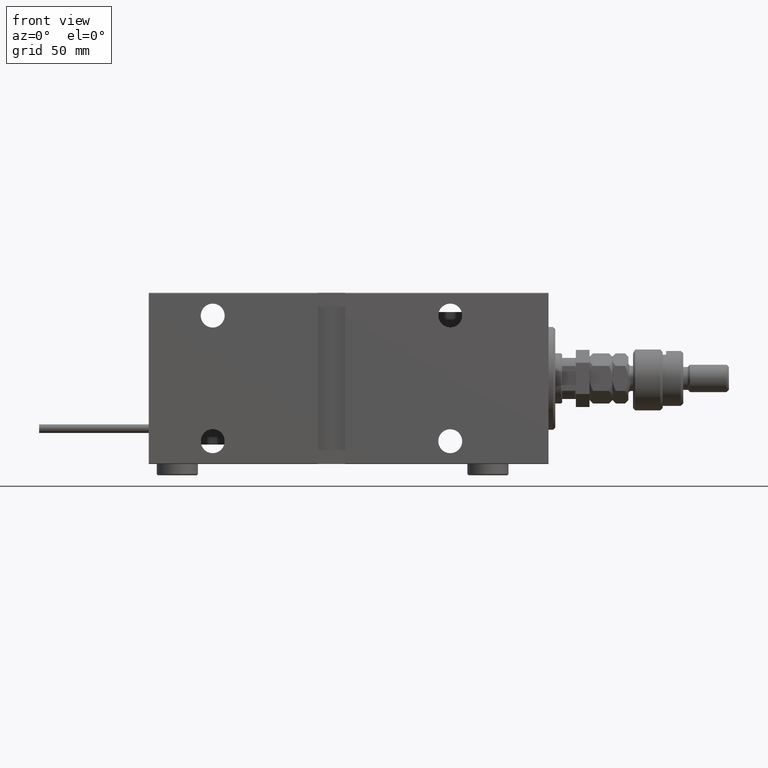
[diagram: clean part render]
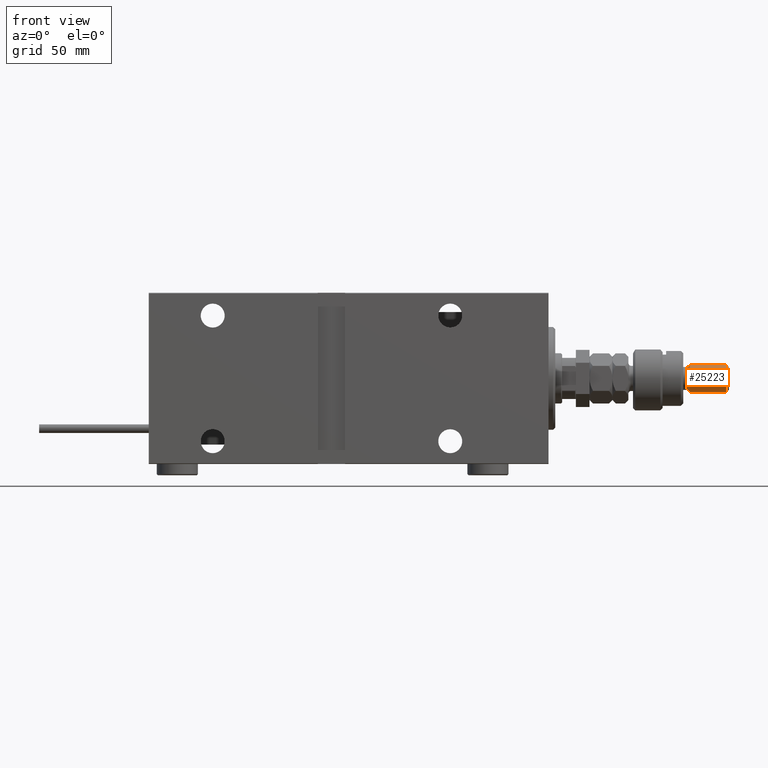
[diagram: same view with one face highlighted and labeled with its STEP entity id]
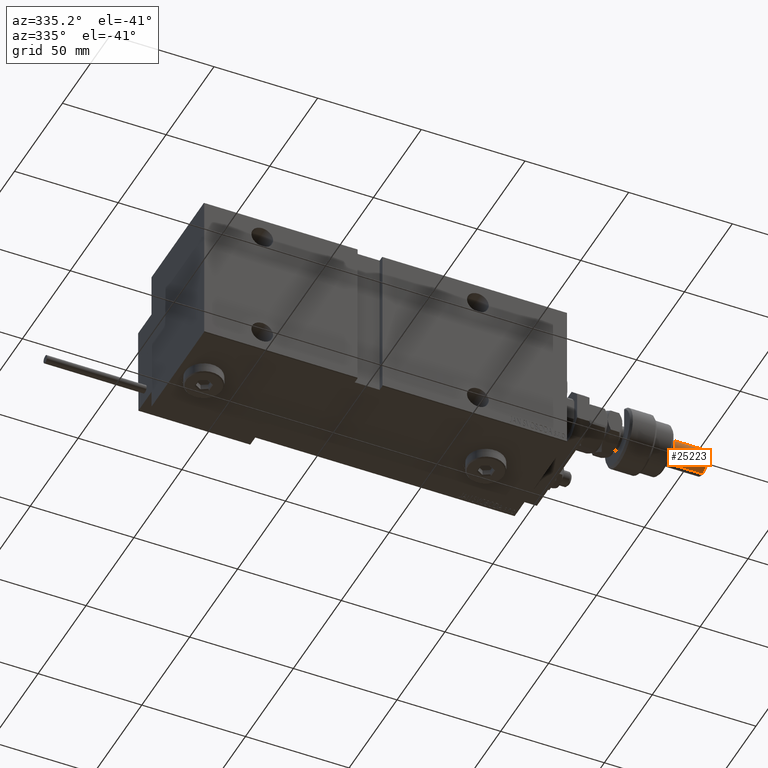
[diagram: same view with one face highlighted and labeled with its STEP entity id]
A machine part, front view. The second image highlights one B-rep face of the part: STEP entity #25223.
A second angle (auxiliary view) of the same face is appended — the face is thin or edge-on in the first view.
In plain terms, the highlighted cylindrical surface (edge-blend (fillet) strip) has radius 6 mm, axis along (-1, -0, 0).
Its self-contained STEP definition (entity closure, byte-faithful):
#236 = AXIS2_PLACEMENT_3D ( 'NONE', #15691, #32362, #16484 ) ;
#415 = DIRECTION ( 'NONE',  ( -0.000000000000000000, -0.000000000000000000, -1.000000000000000000 ) ) ;
#1336 = ORIENTED_EDGE ( 'NONE', *, *, #47566, .T. ) ;
#4638 = VERTEX_POINT ( 'NONE', #45703 ) ;
#11896 = ORIENTED_EDGE ( 'NONE', *, *, #16772, .F. ) ;
#12992 = VECTOR ( 'NONE', #415, 1000.000000000000000 ) ;
#15691 = CARTESIAN_POINT ( 'NONE',  ( 0.000000000000000000, 0.000000000000000000, 40.99999999999997868 ) ) ;
#16484 = DIRECTION ( 'NONE',  ( 1.000000000000000000, 0.000000000000000000, 0.000000000000000000 ) ) ;
#16772 = EDGE_CURVE ( 'NONE', #27968, #28903, #40932, .T. ) ;
#19952 = CARTESIAN_POINT ( 'NONE',  ( 0.000000000000000000, 0.000000000000000000, 41.99999999999999289 ) ) ;
#20318 = CARTESIAN_POINT ( 'NONE',  ( 6.000000000000000888, 7.347880794884120722E-16, 40.99999999999997868 ) ) ;
#23251 = DIRECTION ( 'NONE',  ( -0.000000000000000000, -0.000000000000000000, -1.000000000000000000 ) ) ;
#25223 = ADVANCED_FACE ( 'NONE', ( #36382 ), #32265, .T. ) ;
#25264 = CARTESIAN_POINT ( 'NONE',  ( -6.000000000000000888, 0.000000000000000000, 41.99999999999999289 ) ) ;
#26795 = EDGE_CURVE ( 'NONE', #30529, #28903, #31627, .T. ) ;
#27968 = VERTEX_POINT ( 'NONE', #20318 ) ;
#28903 = VERTEX_POINT ( 'NONE', #48775 ) ;
#30529 = VERTEX_POINT ( 'NONE', #53287 ) ;
#31627 = CIRCLE ( 'NONE', #31746, 6.000000000000000888 ) ;
#31746 = AXIS2_PLACEMENT_3D ( 'NONE', #38741, #47468, #46920 ) ;
#32265 = CYLINDRICAL_SURFACE ( 'NONE', #32508, 6.000000000000000888 ) ;
#32362 = DIRECTION ( 'NONE',  ( 0.000000000000000000, 0.000000000000000000, -1.000000000000000000 ) ) ;
#32387 = LINE ( 'NONE', #25264, #46389 ) ;
#32508 = AXIS2_PLACEMENT_3D ( 'NONE', #19952, #23251, #36653 ) ;
#33525 = CARTESIAN_POINT ( 'NONE',  ( 6.000000000000000888, 7.347880794884120722E-16, 41.99999999999999289 ) ) ;
#36382 = FACE_OUTER_BOUND ( 'NONE', #52972, .T. ) ;
#36653 = DIRECTION ( 'NONE',  ( -1.000000000000000000, 0.000000000000000000, 0.000000000000000000 ) ) ;
#38741 = CARTESIAN_POINT ( 'NONE',  ( 0.000000000000000000, 0.000000000000000000, 24.99999999999999645 ) ) ;
#40932 = LINE ( 'NONE', #33525, #12992 ) ;
#42166 = ORIENTED_EDGE ( 'NONE', *, *, #43672, .T. ) ;
#43672 = EDGE_CURVE ( 'NONE', #4638, #30529, #32387, .T. ) ;
#45703 = CARTESIAN_POINT ( 'NONE',  ( -6.000000000000000888, 0.000000000000000000, 40.99999999999997868 ) ) ;
#46389 = VECTOR ( 'NONE', #49049, 1000.000000000000000 ) ;
#46547 = CIRCLE ( 'NONE', #236, 6.000000000000000888 ) ;
#46920 = DIRECTION ( 'NONE',  ( 1.000000000000000000, 0.000000000000000000, 0.000000000000000000 ) ) ;
#47468 = DIRECTION ( 'NONE',  ( -0.000000000000000000, -0.000000000000000000, 1.000000000000000000 ) ) ;
#47566 = EDGE_CURVE ( 'NONE', #27968, #4638, #46547, .T. ) ;
#48775 = CARTESIAN_POINT ( 'NONE',  ( 6.000000000000000888, 7.347880794884120722E-16, 24.99999999999999645 ) ) ;
#49049 = DIRECTION ( 'NONE',  ( -0.000000000000000000, -0.000000000000000000, -1.000000000000000000 ) ) ;
#51043 = ORIENTED_EDGE ( 'NONE', *, *, #26795, .T. ) ;
#52972 = EDGE_LOOP ( 'NONE', ( #11896, #1336, #42166, #51043 ) ) ;
#53287 = CARTESIAN_POINT ( 'NONE',  ( -6.000000000000000888, 0.000000000000000000, 24.99999999999999645 ) ) ;